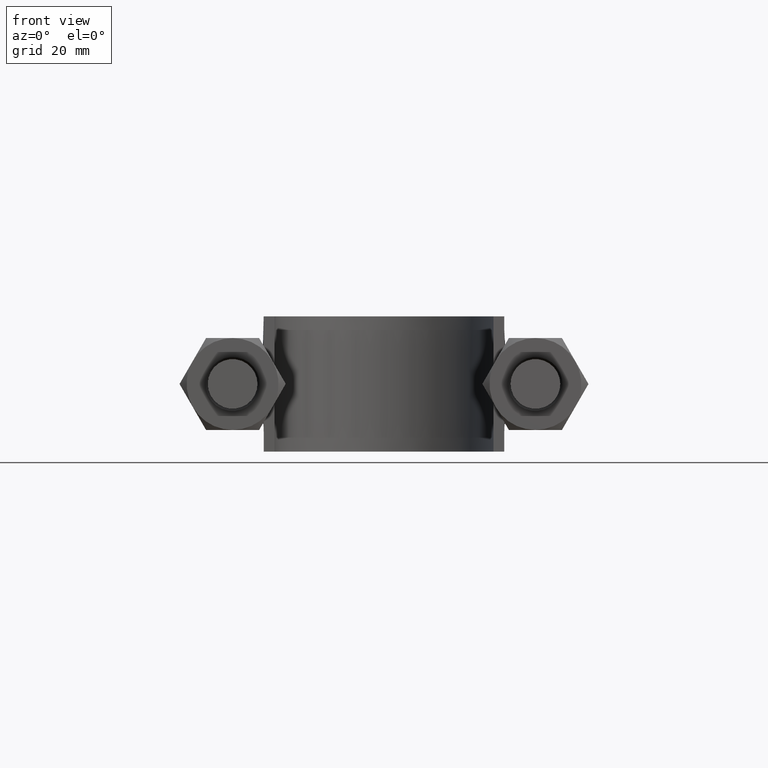
[diagram: clean part render]
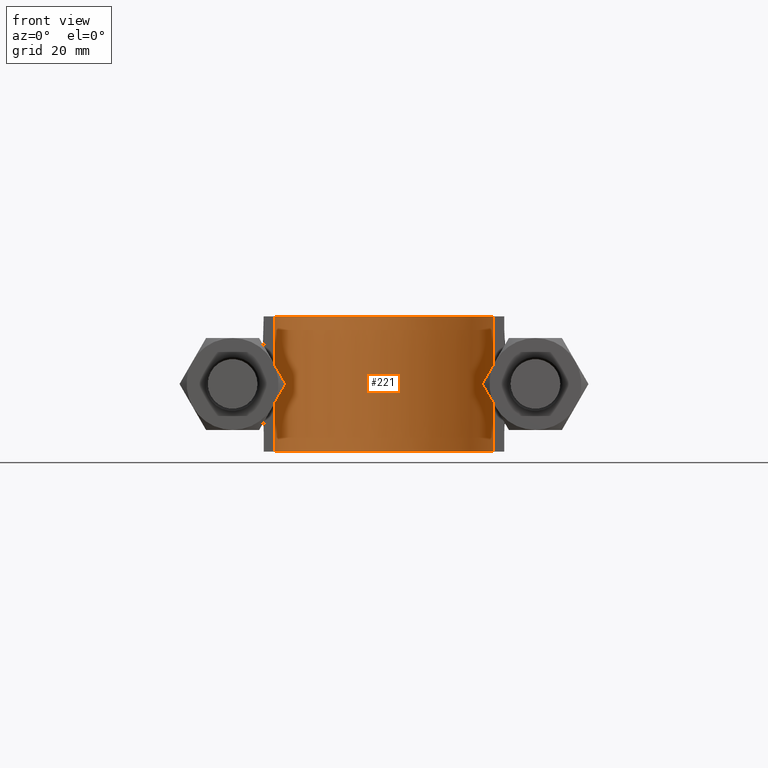
[diagram: same view with one face highlighted and labeled with its STEP entity id]
A machine part, front view. The second image highlights one B-rep face of the part: STEP entity #221.
In plain terms, the highlighted face is a SurfaceOfExtrusion surface.
Its self-contained STEP definition (entity closure, byte-faithful):
#221 = ADVANCED_FACE( '', ( #299 ), #300, .T. );
#299 = FACE_OUTER_BOUND( '', #466, .T. );
#300 = SURFACE_OF_LINEAR_EXTRUSION( '', #467, #468 );
#466 = EDGE_LOOP( '', ( #1319, #1320, #1321, #1322 ) );
#467 = B_SPLINE_CURVE_WITH_KNOTS( '', 3, ( #1323, #1324, #1325, #1326, #1327, #1328, #1329, #1330, #1331, #1332, #1333, #1334, #1335, #1336, #1337, #1338, #1339 ), .UNSPECIFIED., .F., .F., ( 4, 3, 1, 1, 1, 1, 1, 1, 1, 3, 4 ), ( -7.83333333333333, -7.00000000000000, -6.50000000000000, -6.00000000000000, -5.00000000000000, -4.00000000000000, -3.00000000000000, -2.00000000000000, -1.50000000000000, -1.00000000000000, -0.166666666666667 ), .UNSPECIFIED. );
#468 = VECTOR( '', #1340, 1000.00000000000 );
#1319 = ORIENTED_EDGE( '', *, *, #1839, .T. );
#1320 = ORIENTED_EDGE( '', *, *, #1847, .T. );
#1321 = ORIENTED_EDGE( '', *, *, #1844, .F. );
#1322 = ORIENTED_EDGE( '', *, *, #1848, .T. );
#1323 = CARTESIAN_POINT( '', ( 20.2500000000000, 56.5000000000000, 12.5000100000909 ) );
#1324 = CARTESIAN_POINT( '', ( 20.2500000000000, 62.9166666666667, 12.5000100000909 ) );
#1325 = CARTESIAN_POINT( '', ( 20.2500000000000, 69.3333333333333, 12.5000100000909 ) );
#1326 = CARTESIAN_POINT( '', ( 20.2500000000000, 75.7500000000000, 12.5000100000909 ) );
#1327 = CARTESIAN_POINT( '', ( 20.2500000000000, 77.5002047421711, 12.5000100000909 ) );
#1328 = CARTESIAN_POINT( '', ( 19.7738637323347, 81.0557092346270, 12.5000100000909 ) );
#1329 = CARTESIAN_POINT( '', ( 17.0653458001161, 87.6375863532928, 12.5000100000909 ) );
#1330 = CARTESIAN_POINT( '', ( 10.5977855368055, 94.1081766472297, 12.5000100000909 ) );
#1331 = CARTESIAN_POINT( '', ( 1.88109518455077E-014, 96.9459116763852, 12.5000100000909 ) );
#1332 = CARTESIAN_POINT( '', ( -10.5977855368054, 94.1081766472297, 12.5000100000909 ) );
#1333 = CARTESIAN_POINT( '', ( -17.0653458001160, 87.6375863532928, 12.5000100000909 ) );
#1334 = CARTESIAN_POINT( '', ( -19.7738637323346, 81.0557092346270, 12.5000100000909 ) );
#1335 = CARTESIAN_POINT( '', ( -20.2500000000000, 77.5002047421711, 12.5000100000909 ) );
#1336 = CARTESIAN_POINT( '', ( -20.2500000000000, 75.7500000000000, 12.5000100000909 ) );
#1337 = CARTESIAN_POINT( '', ( -20.2500000000000, 69.3333333333333, 12.5000100000909 ) );
#1338 = CARTESIAN_POINT( '', ( -20.2500000000000, 62.9166666666667, 12.5000100000909 ) );
#1339 = CARTESIAN_POINT( '', ( -20.2500000000000, 56.5000000000000, 12.5000100000909 ) );
#1340 = DIRECTION( '', ( 0.000000000000000, 0.000000000000000, -1.00000000000000 ) );
#1839 = EDGE_CURVE( '', #1989, #1990, #1991, .T. );
#1844 = EDGE_CURVE( '', #1997, #2000, #2001, .T. );
#1847 = EDGE_CURVE( '', #1990, #2000, #2005, .F. );
#1848 = EDGE_CURVE( '', #1997, #1989, #2006, .T. );
#1989 = VERTEX_POINT( '', #2235 );
#1990 = VERTEX_POINT( '', #2236 );
#1991 = LINE( '', #2237, #2238 );
#1997 = VERTEX_POINT( '', #2276 );
#2000 = VERTEX_POINT( '', #2280 );
#2001 = LINE( '', #2281, #2282 );
#2005 = B_SPLINE_CURVE_WITH_KNOTS( '', 3, ( #2317, #2318, #2319, #2320, #2321, #2322, #2323, #2324, #2325, #2326, #2327, #2328, #2329, #2330, #2331, #2332, #2333 ), .UNSPECIFIED., .F., .F., ( 4, 3, 1, 1, 1, 1, 1, 1, 1, 3, 4 ), ( -7.83333333333333, -7.00000000000000, -6.50000000000000, -6.00000000000000, -5.00000000000000, -4.00000000000000, -3.00000000000000, -2.00000000000000, -1.50000000000000, -1.00000000000000, -0.166666666666667 ), .UNSPECIFIED. );
#2006 = B_SPLINE_CURVE_WITH_KNOTS( '', 3, ( #2334, #2335, #2336, #2337, #2338, #2339, #2340, #2341, #2342, #2343, #2344, #2345, #2346, #2347, #2348, #2349, #2350, #2351, #2352, #2353, #2354, #2355, #2356, #2357, #2358, #2359, #2360, #2361, #2362, #2363, #2364, #2365, #2366, #2367, #2368, #2369, #2370, #2371, #2372, #2373, #2374, #2375, #2376, #2377, #2378, #2379, #2380, #2381, #2382, #2383, #2384, #2385, #2386, #2387, #2388, #2389, #2390, #2391, #2392, #2393, #2394, #2395, #2396, #2397, #2398 ), .UNSPECIFIED., .F., .F., ( 4, 1, 2, 2, 2, 2, 2, 2, 2, 2, 2, 2, 2, 2, 2, 2, 2, 2, 2, 2, 2, 2, 2, 2, 2, 2, 2, 2, 2, 2, 2, 2, 4 ), ( 0.000000000000000, 0.0127760704714920, 0.0191641057072379, 0.0207611145161745, 0.0223581233251110, 0.0255521409429840, 0.0271491497519205, 0.0287461585608570, 0.0319401761787300, 0.0351341937966031, 0.0367312026055396, 0.0383282114144762, 0.0415222290323492, 0.0431192378412857, 0.0447162466502222, 0.0479102642680952, 0.0495072730770317, 0.0511042818859682, 0.0542982995038412, 0.0574923171217142, 0.0606863347395872, 0.0622833435485237, 0.0638803523574602, 0.0670743699753332, 0.0686713787842697, 0.0702683875932062, 0.0734624052110792, 0.0750594140200157, 0.0766564228289522, 0.0798504404468251, 0.0830444580646980, 0.0894324933004439, 0.102208563771936 ), .UNSPECIFIED. );
#2235 = CARTESIAN_POINT( '', ( -20.2500000000000, 56.5000000000000, 12.5000000000000 ) );
#2236 = CARTESIAN_POINT( '', ( -20.2500000000000, 56.5000000000000, -12.5000000000000 ) );
#2237 = CARTESIAN_POINT( '', ( -20.2500000000000, 56.5000000000000, 12.5000100000909 ) );
#2238 = VECTOR( '', #2873, 1000.00000000000 );
#2276 = CARTESIAN_POINT( '', ( 20.2500000000000, 56.5000000000000, 12.5000000000000 ) );
#2280 = CARTESIAN_POINT( '', ( 20.2500000000000, 56.5000000000000, -12.5000000000000 ) );
#2281 = CARTESIAN_POINT( '', ( 20.2500000000000, 56.5000000000000, 12.5000100000909 ) );
#2282 = VECTOR( '', #2877, 1000.00000000000 );
#2317 = CARTESIAN_POINT( '', ( 20.2500000000000, 56.5000000000000, -12.5000000000000 ) );
#2318 = CARTESIAN_POINT( '', ( 20.2500000000000, 62.9166666666667, -12.5000000000000 ) );
#2319 = CARTESIAN_POINT( '', ( 20.2500000000000, 69.3333333333333, -12.5000000000000 ) );
#2320 = CARTESIAN_POINT( '', ( 20.2500000000000, 75.7500000000000, -12.5000000000000 ) );
#2321 = CARTESIAN_POINT( '', ( 20.2500000000000, 77.5002047421711, -12.5000000000000 ) );
#2322 = CARTESIAN_POINT( '', ( 19.7738637323347, 81.0557092346270, -12.5000000000000 ) );
#2323 = CARTESIAN_POINT( '', ( 17.0653458001161, 87.6375863532928, -12.5000000000000 ) );
#2324 = CARTESIAN_POINT( '', ( 10.5977855368055, 94.1081766472297, -12.5000000000000 ) );
#2325 = CARTESIAN_POINT( '', ( 1.88109518455077E-014, 96.9459116763852, -12.5000000000000 ) );
#2326 = CARTESIAN_POINT( '', ( -10.5977855368054, 94.1081766472297, -12.5000000000000 ) );
#2327 = CARTESIAN_POINT( '', ( -17.0653458001160, 87.6375863532928, -12.5000000000000 ) );
#2328 = CARTESIAN_POINT( '', ( -19.7738637323346, 81.0557092346270, -12.5000000000000 ) );
#2329 = CARTESIAN_POINT( '', ( -20.2500000000000, 77.5002047421711, -12.5000000000000 ) );
#2330 = CARTESIAN_POINT( '', ( -20.2500000000000, 75.7500000000000, -12.5000000000000 ) );
#2331 = CARTESIAN_POINT( '', ( -20.2500000000000, 69.3333333333333, -12.5000000000000 ) );
#2332 = CARTESIAN_POINT( '', ( -20.2500000000000, 62.9166666666667, -12.5000000000000 ) );
#2333 = CARTESIAN_POINT( '', ( -20.2500000000000, 56.5000000000000, -12.5000000000000 ) );
#2334 = CARTESIAN_POINT( '', ( 20.2500000000000, 56.5000000000000, 12.5000000000000 ) );
#2335 = CARTESIAN_POINT( '', ( 20.2500000000000, 60.7587750112952, 12.5000000000000 ) );
#2336 = CARTESIAN_POINT( '', ( 20.2500000000000, 67.1469375282380, 12.5000000000000 ) );
#2337 = CARTESIAN_POINT( '', ( 20.2500000000000, 73.5351000451808, 12.5000000000000 ) );
#2338 = CARTESIAN_POINT( '', ( 20.2500000000000, 76.1968344272403, 12.5000000000000 ) );
#2339 = CARTESIAN_POINT( '', ( 20.2325185932058, 76.7290709486525, 12.5000000000000 ) );
#2340 = CARTESIAN_POINT( '', ( 20.1507564072343, 77.7932485607496, 12.5000000000000 ) );
#2341 = CARTESIAN_POINT( '', ( 20.0883061403829, 78.3266384507028, 12.5000000000000 ) );
#2342 = CARTESIAN_POINT( '', ( 19.8411544788614, 79.9049216190263, 12.5000000000000 ) );
#2343 = CARTESIAN_POINT( '', ( 19.5972531722442, 80.9340939272970, 12.5000000000000 ) );
#2344 = CARTESIAN_POINT( '', ( 19.1143290266240, 82.4438012302995, 12.5000000000000 ) );
#2345 = CARTESIAN_POINT( '', ( 18.9337196159961, 82.9413261270231, 12.5000000000000 ) );
#2346 = CARTESIAN_POINT( '', ( 18.5322042555853, 83.9246554262295, 12.5000000000000 ) );
#2347 = CARTESIAN_POINT( '', ( 18.3103497048781, 84.4122980863555, 12.5000000000000 ) );
#2348 = CARTESIAN_POINT( '', ( 17.5883029008569, 85.8433729326248, 12.5000000000000 ) );
#2349 = CARTESIAN_POINT( '', ( 17.0361642464391, 86.7466899955001, 12.5000000000000 ) );
#2350 = CARTESIAN_POINT( '', ( 15.7977747544106, 88.4571888197273, 12.5000000000000 ) );
#2351 = CARTESIAN_POINT( '', ( 15.1119256699320, 89.2646585687740, 12.5000000000000 ) );
#2352 = CARTESIAN_POINT( '', ( 13.9807397682358, 90.4024512569006, 12.5000000000000 ) );
#2353 = CARTESIAN_POINT( '', ( 13.5895701763793, 90.7661749733792, 12.5000000000000 ) );
#2354 = CARTESIAN_POINT( '', ( 12.7851265957037, 91.4580361004324, 12.5000000000000 ) );
#2355 = CARTESIAN_POINT( '', ( 12.3709987776085, 91.7870355671572, 12.5000000000000 ) );
#2356 = CARTESIAN_POINT( '', ( 11.0930192046991, 92.7234141180870, 12.5000000000000 ) );
#2357 = CARTESIAN_POINT( '', ( 10.1936048324155, 93.2802209937294, 12.5000000000000 ) );
#2358 = CARTESIAN_POINT( '', ( 8.76987608948421, 94.0093353456589, 12.5000000000000 ) );
#2359 = CARTESIAN_POINT( '', ( 8.28230487965957, 94.2348181733111, 12.5000000000000 ) );
#2360 = CARTESIAN_POINT( '', ( 7.29990297623065, 94.6430124016540, 12.5000000000000 ) );
#2361 = CARTESIAN_POINT( '', ( 6.80297280659034, 94.8268857533903, 12.5000000000000 ) );
#2362 = CARTESIAN_POINT( '', ( 5.29544739319345, 95.3194326965479, 12.5000000000000 ) );
#2363 = CARTESIAN_POINT( '', ( 4.26825468055360, 95.5695183145206, 12.5000000000000 ) );
#2364 = CARTESIAN_POINT( '', ( 2.69348615238794, 95.8247014855039, 12.5000000000000 ) );
#2365 = CARTESIAN_POINT( '', ( 2.16044146795933, 95.8897809587938, 12.5000000000000 ) );
#2366 = CARTESIAN_POINT( '', ( 1.09735631388167, 95.9767654924869, 12.5000000000000 ) );
#2367 = CARTESIAN_POINT( '', ( 0.567140201797622, 95.9989412590487, 12.5000000000000 ) );
#2368 = CARTESIAN_POINT( '', ( -1.01955908144577, 96.0020066562675, 12.5000000000000 ) );
#2369 = CARTESIAN_POINT( '', ( -2.07211998604450, 95.9198648468890, 12.5000000000000 ) );
#2370 = CARTESIAN_POINT( '', ( -4.16699752673535, 95.5909542232866, 12.5000000000000 ) );
#2371 = CARTESIAN_POINT( '', ( -5.21560798675491, 95.3410084750508, 12.5000000000000 ) );
#2372 = CARTESIAN_POINT( '', ( -7.23366524656629, 94.6903505083965, 12.5000000000000 ) );
#2373 = CARTESIAN_POINT( '', ( -8.21081305672812, 94.2894280632978, 12.5000000000000 ) );
#2374 = CARTESIAN_POINT( '', ( -9.62786151308586, 93.5726339336733, 12.5000000000000 ) );
#2375 = CARTESIAN_POINT( '', ( -10.0920282029372, 93.3143001122937, 12.5000000000000 ) );
#2376 = CARTESIAN_POINT( '', ( -11.0033912848163, 92.7573937438659, 12.5000000000000 ) );
#2377 = CARTESIAN_POINT( '', ( -11.4493009832890, 92.4595079799723, 12.5000000000000 ) );
#2378 = CARTESIAN_POINT( '', ( -12.7388040737813, 91.5226482145149, 12.5000000000000 ) );
#2379 = CARTESIAN_POINT( '', ( -13.5423954827075, 90.8361910092783, 12.5000000000000 ) );
#2380 = CARTESIAN_POINT( '', ( -14.6660286099696, 89.7162857301196, 12.5000000000000 ) );
#2381 = CARTESIAN_POINT( '', ( -15.0268614013046, 89.3278525749094, 12.5000000000000 ) );
#2382 = CARTESIAN_POINT( '', ( -15.7204481626702, 88.5199999293524, 12.5000000000000 ) );
#2383 = CARTESIAN_POINT( '', ( -16.0542948623033, 88.0988785538076, 12.5000000000000 ) );
#2384 = CARTESIAN_POINT( '', ( -16.9965523071265, 86.8085345800511, 12.5000000000000 ) );
#2385 = CARTESIAN_POINT( '', ( -17.5503004054953, 85.9079885832436, 12.5000000000000 ) );
#2386 = CARTESIAN_POINT( '', ( -18.2699613871312, 84.4970597567014, 12.5000000000000 ) );
#2387 = CARTESIAN_POINT( '', ( -18.4914480640609, 84.0167823366914, 12.5000000000000 ) );
#2388 = CARTESIAN_POINT( '', ( -18.8975510576864, 83.0362541022281, 12.5000000000000 ) );
#2389 = CARTESIAN_POINT( '', ( -19.0826630920098, 82.5344456269447, 12.5000000000000 ) );
#2390 = CARTESIAN_POINT( '', ( -19.5780060196449, 81.0090228170363, 12.5000000000000 ) );
#2391 = CARTESIAN_POINT( '', ( -19.8250910174448, 79.9786333814562, 12.5000000000000 ) );
#2392 = CARTESIAN_POINT( '', ( -20.1605144395943, 77.8921917341126, 12.5000000000000 ) );
#2393 = CARTESIAN_POINT( '', ( -20.2491069249580, 76.8361805935408, 12.5000000000000 ) );
#2394 = CARTESIAN_POINT( '', ( -20.2517662800249, 73.6256118226233, 12.5000000000000 ) );
#2395 = CARTESIAN_POINT( '', ( -20.2500000000000, 71.4846605019674, 12.5000000000000 ) );
#2396 = CARTESIAN_POINT( '', ( -20.2500000000000, 65.0626631439814, 12.5000000000000 ) );
#2397 = CARTESIAN_POINT( '', ( -20.2500000000000, 60.7813315719907, 12.5000000000000 ) );
#2398 = CARTESIAN_POINT( '', ( -20.2500000000000, 56.5000000000000, 12.5000000000000 ) );
#2873 = DIRECTION( '', ( 0.000000000000000, 0.000000000000000, -1.00000000000000 ) );
#2877 = DIRECTION( '', ( 0.000000000000000, 0.000000000000000, -1.00000000000000 ) );